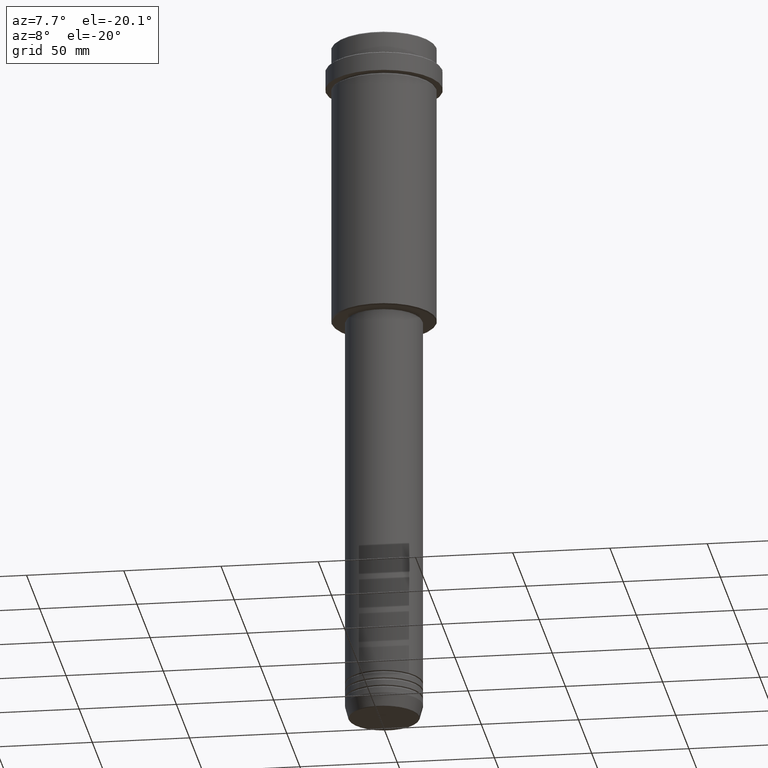
[diagram: clean part render]
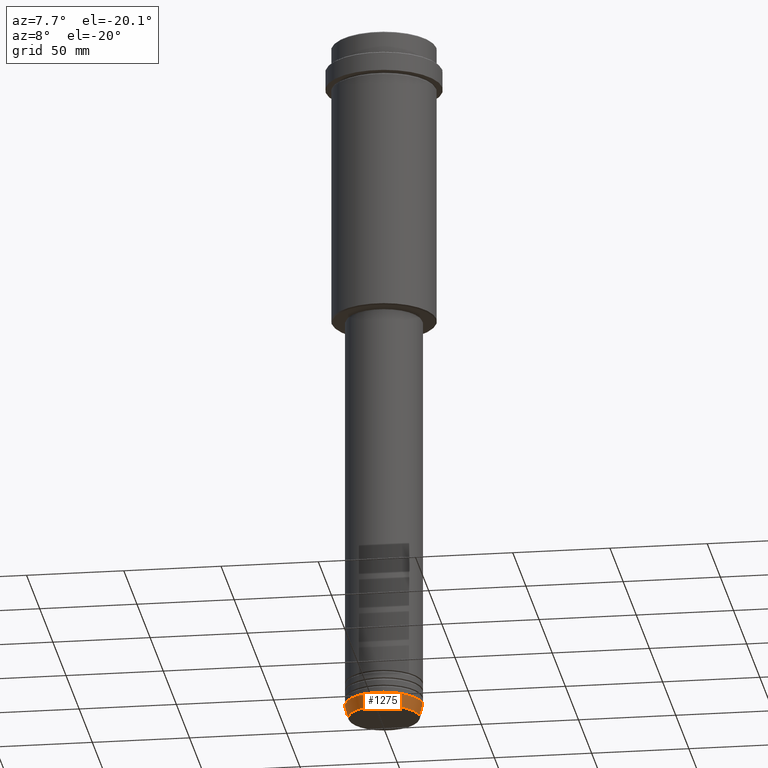
[diagram: same view with one face highlighted and labeled with its STEP entity id]
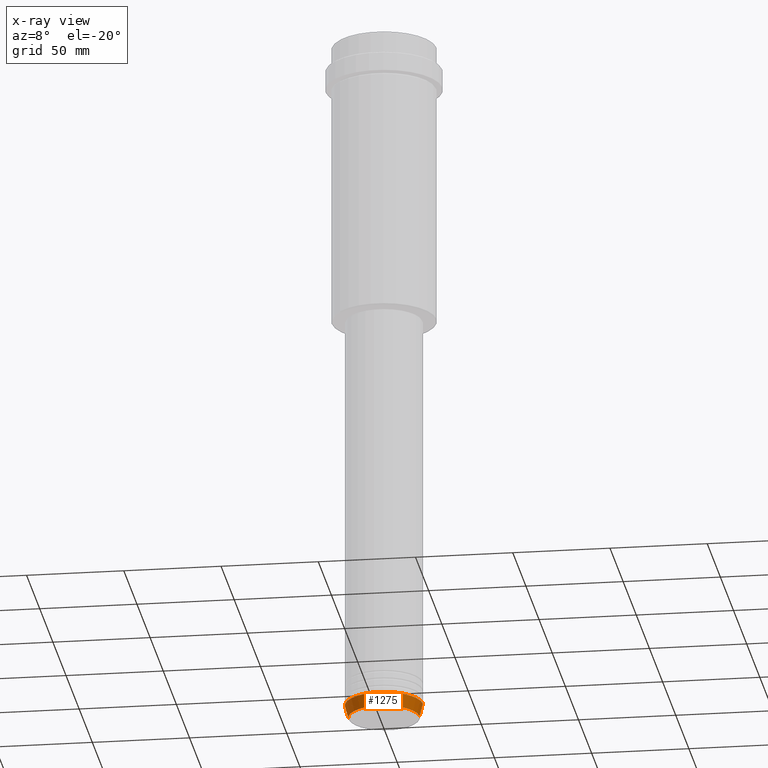
[diagram: x-ray of the same camera — body ghosted, the highlighted face saturated]
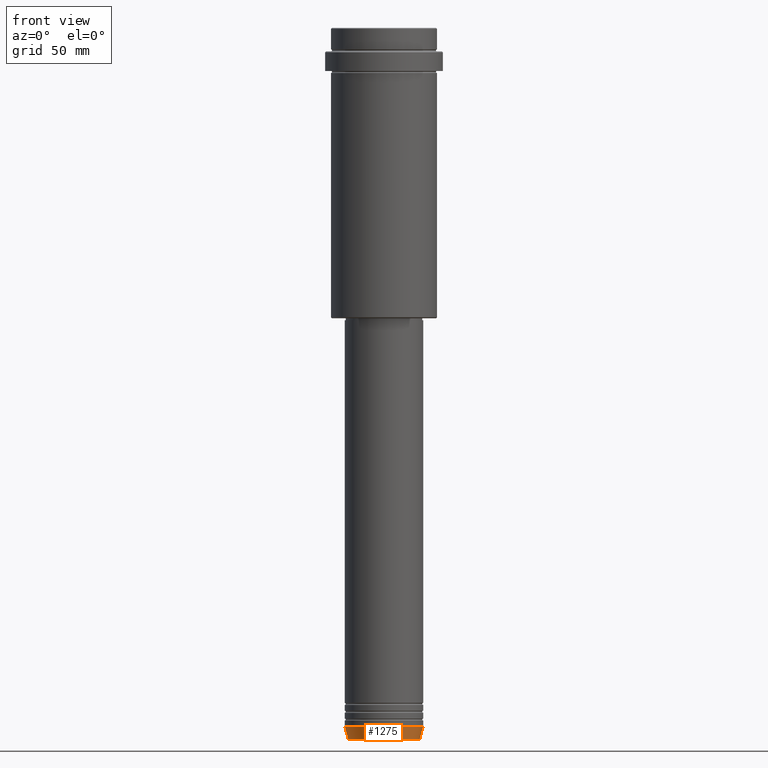
[diagram: same view with one face highlighted and labeled with its STEP entity id]
A machine part, auxiliary view. The second image highlights one B-rep face of the part: STEP entity #1275.
The next image is the same camera in x-ray: the body ghosted, the highlighted face saturated — about 0% of this face is hidden behind the body in this view.
A second angle (front view) of the same face is appended — the face is thin or edge-on in the first view.
In plain terms, the highlighted conical surface has half-angle 15 deg.
Its self-contained STEP definition (entity closure, byte-faithful):
#33 = DIRECTION ( 'NONE',  ( 1.000000000000000000, 0.000000000000000000, 0.000000000000000000 ) ) ;
#48 = ORIENTED_EDGE ( 'NONE', *, *, #557, .T. ) ;
#159 = AXIS2_PLACEMENT_3D ( 'NONE', #1308, #771, #1327 ) ;
#180 = AXIS2_PLACEMENT_3D ( 'NONE', #786, #258, #1346 ) ;
#258 = DIRECTION ( 'NONE',  ( -0.000000000000000000, -0.000000000000000000, 1.000000000000000000 ) ) ;
#291 = CARTESIAN_POINT ( 'NONE',  ( -20.00000000000000000, 2.449293598294706513E-15, -356.0000000000000568 ) ) ;
#301 = DIRECTION ( 'NONE',  ( -0.2588190451025209060, 3.169619151431766790E-17, 0.9659258262890682012 ) ) ;
#305 = DIRECTION ( 'NONE',  ( -0.000000000000000000, -0.000000000000000000, 1.000000000000000000 ) ) ;
#317 = DIRECTION ( 'NONE',  ( 0.2588190451025209060, 0.000000000000000000, 0.9659258262890682012 ) ) ;
#322 = CARTESIAN_POINT ( 'NONE',  ( 18.22365507213718416, 0.000000000000000000, -362.6294095225512706 ) ) ;
#346 = LINE ( 'NONE', #533, #623 ) ;
#405 = ORIENTED_EDGE ( 'NONE', *, *, #685, .F. ) ;
#414 = EDGE_CURVE ( 'NONE', #839, #673, #346, .T. ) ;
#419 = CARTESIAN_POINT ( 'NONE',  ( 0.000000000000000000, 0.000000000000000000, -356.0000000000000568 ) ) ;
#462 = EDGE_CURVE ( 'NONE', #1278, #673, #1007, .T. ) ;
#468 = CARTESIAN_POINT ( 'NONE',  ( -20.00000000000000000, 2.449293598294706513E-15, -356.0000000000000568 ) ) ;
#533 = CARTESIAN_POINT ( 'NONE',  ( 20.00000000000000000, 0.000000000000000000, -356.0000000000000568 ) ) ;
#557 = EDGE_CURVE ( 'NONE', #871, #839, #783, .T. ) ;
#558 = ORIENTED_EDGE ( 'NONE', *, *, #414, .T. ) ;
#623 = VECTOR ( 'NONE', #317, 1000.000000000000000 ) ;
#640 = CARTESIAN_POINT ( 'NONE',  ( -18.22365507213718416, 2.340523841790264718E-15, -362.6294095225512706 ) ) ;
#647 = VECTOR ( 'NONE', #301, 1000.000000000000000 ) ;
#673 = VERTEX_POINT ( 'NONE', #1352 ) ;
#678 = AXIS2_PLACEMENT_3D ( 'NONE', #419, #305, #33 ) ;
#685 = EDGE_CURVE ( 'NONE', #871, #1278, #830, .T. ) ;
#731 = ORIENTED_EDGE ( 'NONE', *, *, #462, .F. ) ;
#771 = DIRECTION ( 'NONE',  ( -0.000000000000000000, -0.000000000000000000, 1.000000000000000000 ) ) ;
#783 = CIRCLE ( 'NONE', #180, 18.22365507213718416 ) ;
#786 = CARTESIAN_POINT ( 'NONE',  ( 0.000000000000000000, 0.000000000000000000, -362.6294095225512706 ) ) ;
#830 = LINE ( 'NONE', #291, #647 ) ;
#839 = VERTEX_POINT ( 'NONE', #322 ) ;
#855 = EDGE_LOOP ( 'NONE', ( #405, #48, #558, #731 ) ) ;
#871 = VERTEX_POINT ( 'NONE', #640 ) ;
#962 = CONICAL_SURFACE ( 'NONE', #678, 20.00000000000000000, 0.2617993877991495744 ) ;
#1000 = FACE_OUTER_BOUND ( 'NONE', #855, .T. ) ;
#1007 = CIRCLE ( 'NONE', #159, 20.00000000000000000 ) ;
#1275 = ADVANCED_FACE ( 'NONE', ( #1000 ), #962, .T. ) ;
#1278 = VERTEX_POINT ( 'NONE', #468 ) ;
#1308 = CARTESIAN_POINT ( 'NONE',  ( 0.000000000000000000, 0.000000000000000000, -356.0000000000000568 ) ) ;
#1327 = DIRECTION ( 'NONE',  ( 1.000000000000000000, 0.000000000000000000, 0.000000000000000000 ) ) ;
#1346 = DIRECTION ( 'NONE',  ( 1.000000000000000000, 0.000000000000000000, 0.000000000000000000 ) ) ;
#1352 = CARTESIAN_POINT ( 'NONE',  ( 20.00000000000000000, 0.000000000000000000, -356.0000000000000568 ) ) ;